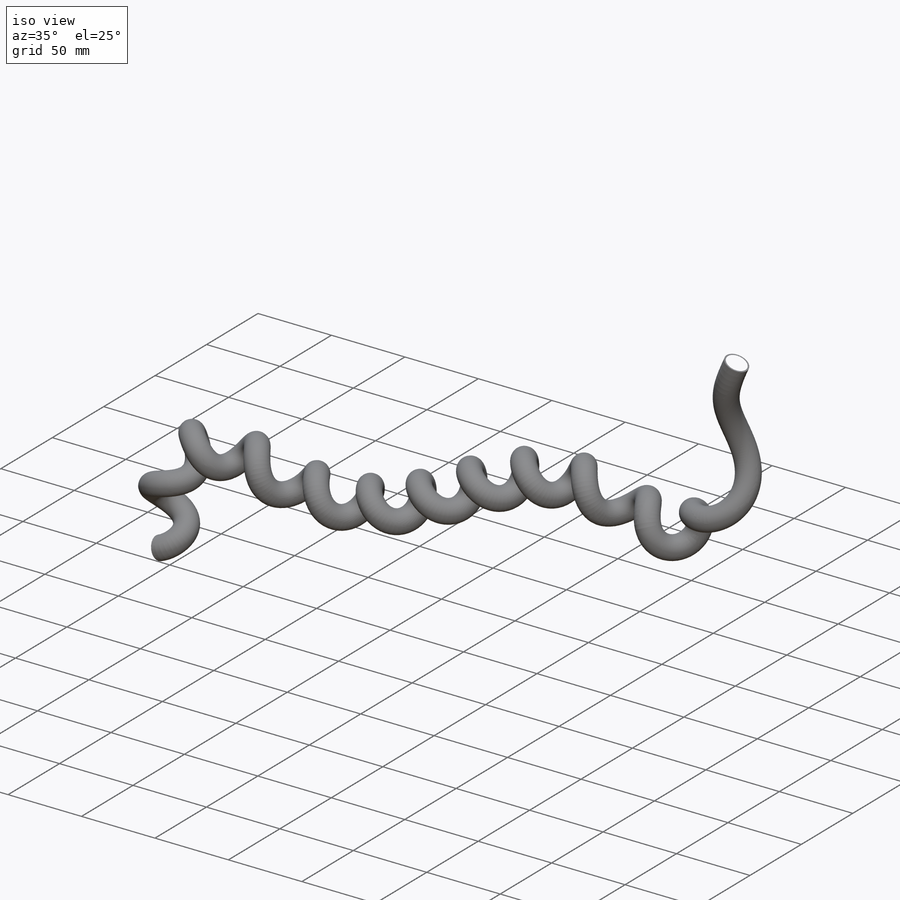
[diagram: iso view]
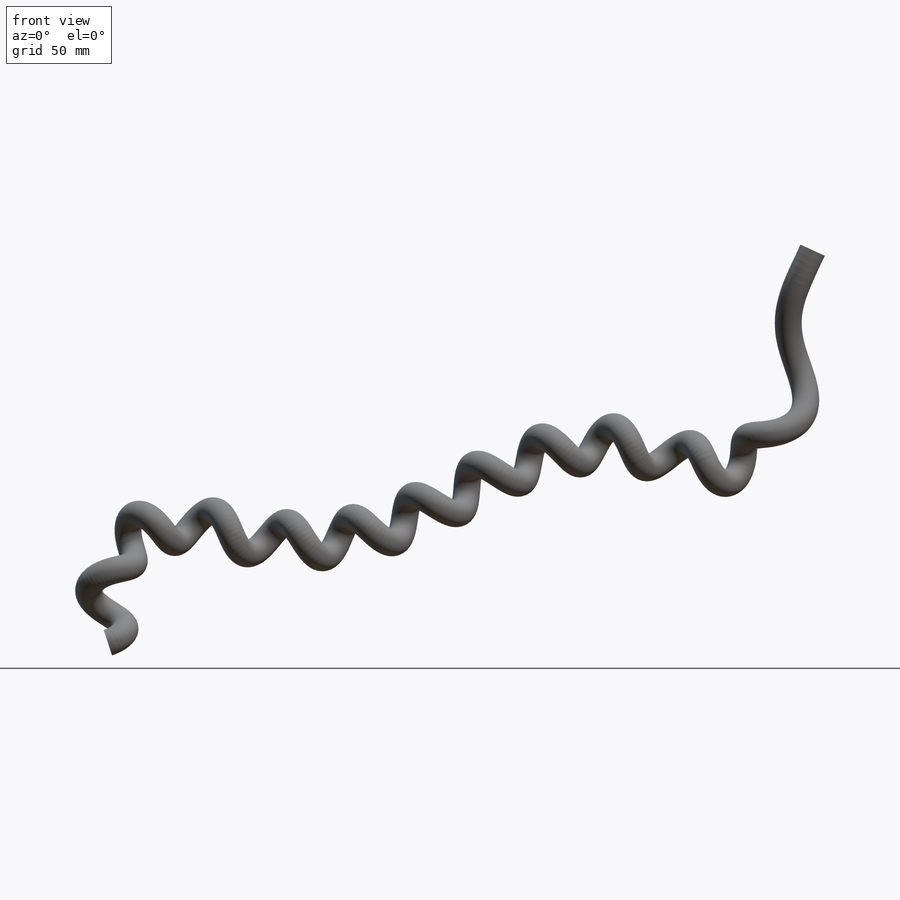
[diagram: front view]
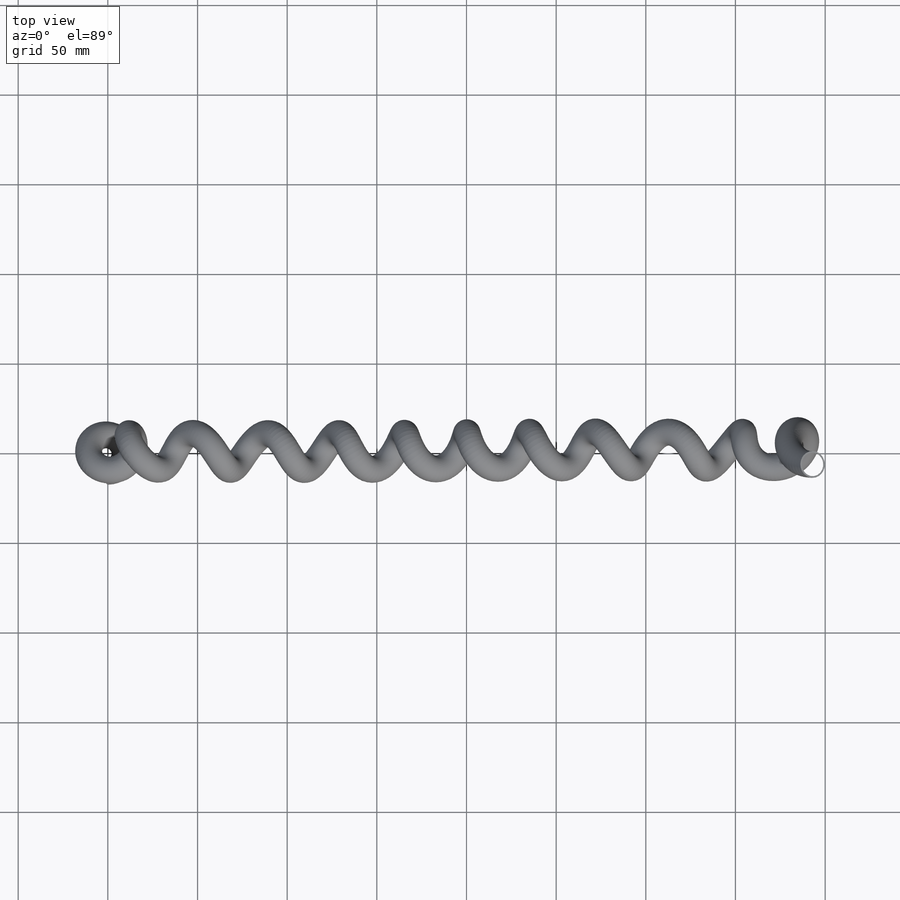
[diagram: top view]
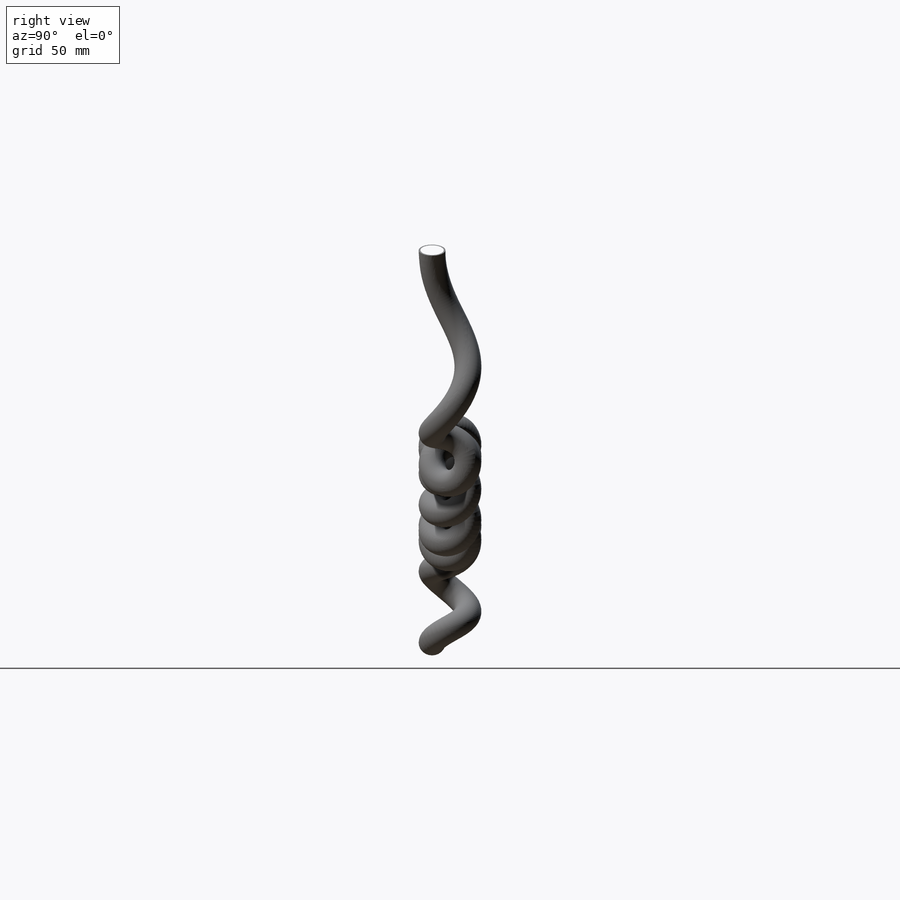
[diagram: right view]
SOLIDWORKS PART (.sldprt)
format: sldprt  version: not decoded by parser v0  size: 3,316,736 bytes
history: native  units: mm
features: sketch x7, plane x4, material x1, sweep x1, shell x1 (+9 scaffold rows collapsed)
feature tree (23):
  scaffold x9  (default folders/planes/origin — collapsed)
  material  "Material <nicht festgelegt>"
  plane  "XY-Vorderansicht"
  plane  "XZ-Draufsicht"
  plane  "YZ-Seitenansicht"
  sketch  "Skizze1"
  sketch  "Skizze2"  dims[D1=20.0mm]
  sketch  "Skizze1<3>"
  sketch  "Skizze3"  dims[D1=11.0mm]
  sketch  "Oberfläche-Austragung1"  dims[D1=4320.0deg]
  sketch  "3D-Skizze2"
  plane  "Ebene1"
  sketch  "Skizze5"  dims[D1=15.0mm]
  sweep  "Austragung3"
  shell  "Wandung1"  Thickness=1mm
decode coverage: 5 of 9 modeling features carry decoded parameters
note: suppression state not decoded; provenance and decode notes live in map.json
